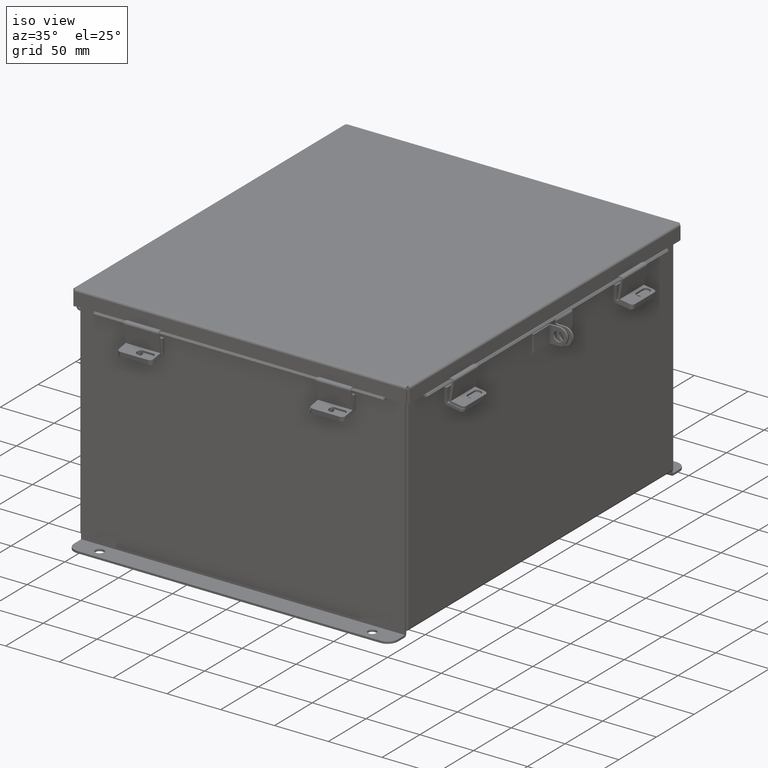
[diagram: clean part render]
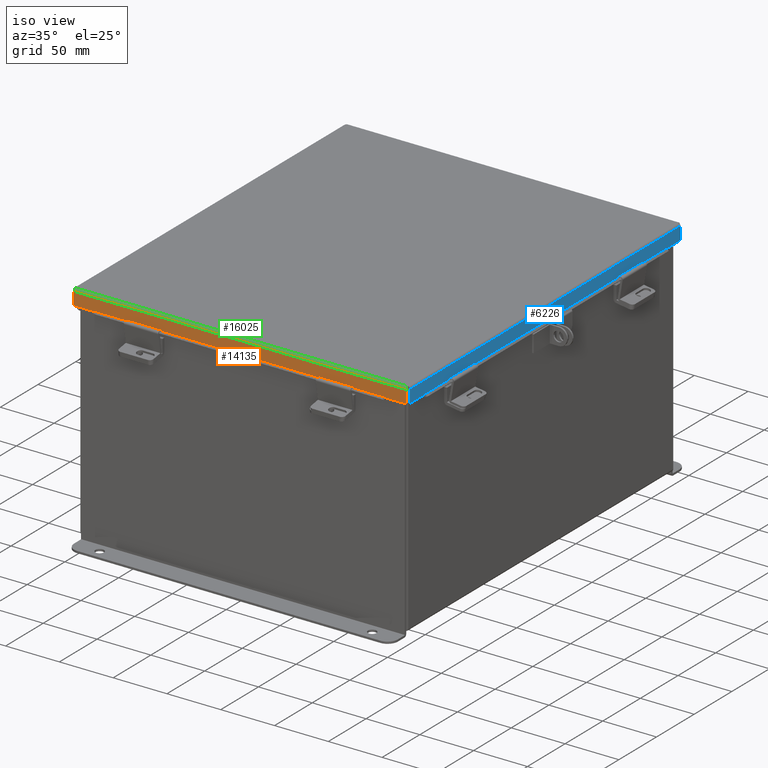
[diagram: same view with three faces highlighted in distinct colors, each labeled with its STEP entity id]
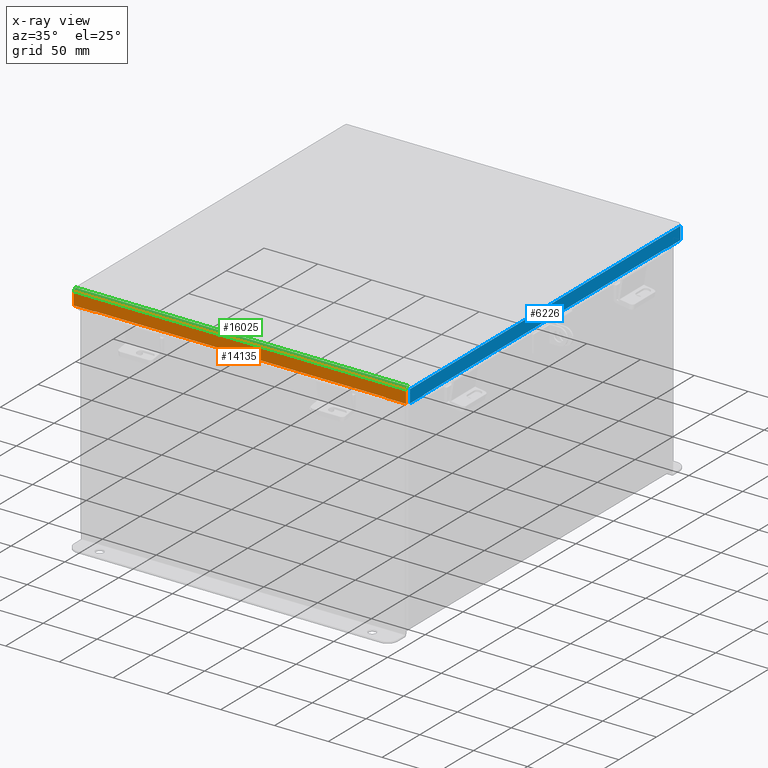
[diagram: x-ray of the same camera — body ghosted, the three highlighted faces saturated]
A machine part, iso view with three faces highlighted in distinct colors.
The next image is the same camera in x-ray (body ghosted, the three faces saturated) — at least one of them is partly hidden behind the body in this view.
Their STEP definitions:

[orange] entity #14135 — the highlighted planar face has unit normal (0, 1, -0).
#89 = CARTESIAN_POINT ( 'NONE',  ( -5.324478932188134700, -7.156250000000003600, 0.4872999999999997900 ) ) ;
#109 = CARTESIAN_POINT ( 'NONE',  ( -6.074478932188134700, -7.156250000000003600, 0.4872999999999997900 ) ) ;
#110 = ORIENTED_EDGE ( 'NONE', *, *, #6830, .F. ) ;
#273 = EDGE_CURVE ( 'NONE', #1318, #590, #18271, .T. ) ;
#311 = LINE ( 'NONE', #15221, #15127 ) ;
#346 = VECTOR ( 'NONE', #4313, 39.37007874015748100 ) ;
#590 = VERTEX_POINT ( 'NONE', #10620 ) ;
#676 = CARTESIAN_POINT ( 'NONE',  ( -5.324478932188133000, -7.156250000000003600, 0.4717115427318793700 ) ) ;
#1004 = CARTESIAN_POINT ( 'NONE',  ( 5.324478932188136500, -7.156250000000003600, 0.4872999999999997900 ) ) ;
#1318 = VERTEX_POINT ( 'NONE', #676 ) ;
#1601 = EDGE_CURVE ( 'NONE', #14327, #4415, #7021, .T. ) ;
#1910 = PLANE ( 'NONE',  #9705 ) ;
#2140 = VECTOR ( 'NONE', #2746, 39.37007874015748100 ) ;
#2746 = DIRECTION ( 'NONE',  ( -1.000000000000000000, 0.0000000000000000000, 5.546899479521349200E-018 ) ) ;
#2969 = VERTEX_POINT ( 'NONE', #1004 ) ;
#3191 = VECTOR ( 'NONE', #16970, 39.37007874015748100 ) ;
#3381 = DIRECTION ( 'NONE',  ( 2.487713722829918300E-032, 1.000000000000000000, 4.484872552701437000E-015 ) ) ;
#3517 = ORIENTED_EDGE ( 'NONE', *, *, #16883, .T. ) ;
#4190 = CARTESIAN_POINT ( 'NONE',  ( 6.074478932188135600, -7.156250000000001800, -3.235568286128124700E-014 ) ) ;
#4204 = LINE ( 'NONE', #12903, #346 ) ;
#4313 = DIRECTION ( 'NONE',  ( -1.000000000000000000, 0.0000000000000000000, 5.546899479521349200E-018 ) ) ;
#4415 = VERTEX_POINT ( 'NONE', #8516 ) ;
#4433 = VERTEX_POINT ( 'NONE', #18532 ) ;
#4774 = LINE ( 'NONE', #18619, #12405 ) ;
#4836 = ORIENTED_EDGE ( 'NONE', *, *, #1601, .T. ) ;
#4953 = VERTEX_POINT ( 'NONE', #109 ) ;
#5083 = LINE ( 'NONE', #9905, #2140 ) ;
#5156 = ORIENTED_EDGE ( 'NONE', *, *, #7479, .T. ) ;
#5699 = DIRECTION ( 'NONE',  ( -1.000000000000000000, 2.487713722829918300E-032, 1.089533968265403200E-046 ) ) ;
#6475 = ORIENTED_EDGE ( 'NONE', *, *, #17955, .F. ) ;
#6580 = ORIENTED_EDGE ( 'NONE', *, *, #9723, .F. ) ;
#6830 = EDGE_CURVE ( 'NONE', #16254, #1318, #11581, .T. ) ;
#7021 = LINE ( 'NONE', #4190, #9926 ) ;
#7479 = EDGE_CURVE ( 'NONE', #16254, #4953, #5083, .T. ) ;
#7791 = VECTOR ( 'NONE', #18203, 39.37007874015748100 ) ;
#8163 = CARTESIAN_POINT ( 'NONE',  ( 6.074478932188137400, -7.156250000000001800, 0.01299999999999978100 ) ) ;
#8516 = CARTESIAN_POINT ( 'NONE',  ( 6.074478932188137400, -7.156250000000003600, 0.4872999999999997300 ) ) ;
#9705 = AXIS2_PLACEMENT_3D ( 'NONE', #11986, #3381, #13410 ) ;
#9723 = EDGE_CURVE ( 'NONE', #590, #2969, #9939, .T. ) ;
#9798 = EDGE_CURVE ( 'NONE', #14327, #4433, #4774, .T. ) ;
#9905 = CARTESIAN_POINT ( 'NONE',  ( 2.703004116370754100E-018, -7.156250000000003600, 0.4872999999999997900 ) ) ;
#9926 = VECTOR ( 'NONE', #12799, 39.37007874015748100 ) ;
#9939 = LINE ( 'NONE', #15521, #3191 ) ;
#10234 = CARTESIAN_POINT ( 'NONE',  ( -5.324478932188134700, -7.156250000000004400, 0.4717115427318793700 ) ) ;
#10620 = CARTESIAN_POINT ( 'NONE',  ( 5.324478932188136500, -7.156250000000003600, 0.4717115427318793700 ) ) ;
#11367 = EDGE_LOOP ( 'NONE', ( #110, #5156, #6475, #14576, #4836, #3517, #6580, #14541 ) ) ;
#11581 = LINE ( 'NONE', #16726, #7791 ) ;
#11899 = FACE_OUTER_BOUND ( 'NONE', #11367, .T. ) ;
#11986 = CARTESIAN_POINT ( 'NONE',  ( -1.780270132900160700E-031, -7.156250000000001800, -3.235568286128124700E-014 ) ) ;
#12405 = VECTOR ( 'NONE', #5699, 39.37007874015748100 ) ;
#12799 = DIRECTION ( 'NONE',  ( 0.0000000000000000000, -4.484872552701437000E-015, 1.000000000000000000 ) ) ;
#12903 = CARTESIAN_POINT ( 'NONE',  ( 2.703004116370754100E-018, -7.156250000000003600, 0.4872999999999997900 ) ) ;
#13410 = DIRECTION ( 'NONE',  ( 0.0000000000000000000, -4.484872552701437000E-015, 1.000000000000000000 ) ) ;
#14135 = ADVANCED_FACE ( 'NONE', ( #11899 ), #1910, .F. ) ;
#14327 = VERTEX_POINT ( 'NONE', #8163 ) ;
#14541 = ORIENTED_EDGE ( 'NONE', *, *, #273, .F. ) ;
#14576 = ORIENTED_EDGE ( 'NONE', *, *, #9798, .F. ) ;
#14877 = VECTOR ( 'NONE', #17563, 39.37007874015748100 ) ;
#15127 = VECTOR ( 'NONE', #18065, 39.37007874015748100 ) ;
#15221 = CARTESIAN_POINT ( 'NONE',  ( -6.074478932188134700, -7.156250000000001800, -3.350199796867980800E-016 ) ) ;
#15521 = CARTESIAN_POINT ( 'NONE',  ( 5.324478932188136500, -7.156250000000004400, 0.4717115427318793700 ) ) ;
#16254 = VERTEX_POINT ( 'NONE', #89 ) ;
#16726 = CARTESIAN_POINT ( 'NONE',  ( -5.324478932188134700, -7.156250000000004400, 0.4872999999999991200 ) ) ;
#16883 = EDGE_CURVE ( 'NONE', #4415, #2969, #4204, .T. ) ;
#16970 = DIRECTION ( 'NONE',  ( 0.0000000000000000000, 7.009925220120839700E-014, 1.000000000000000000 ) ) ;
#17563 = DIRECTION ( 'NONE',  ( 1.000000000000000000, 0.0000000000000000000, 0.0000000000000000000 ) ) ;
#17955 = EDGE_CURVE ( 'NONE', #4433, #4953, #311, .T. ) ;
#18065 = DIRECTION ( 'NONE',  ( -0.0000000000000000000, -4.484872552701437000E-015, 1.000000000000000000 ) ) ;
#18203 = DIRECTION ( 'NONE',  ( 7.009925220120962200E-014, 0.0000000000000000000, -1.000000000000000000 ) ) ;
#18271 = LINE ( 'NONE', #10234, #14877 ) ;
#18532 = CARTESIAN_POINT ( 'NONE',  ( -6.074478932188134700, -7.156250000000001800, 0.01299999999999977400 ) ) ;
#18619 = CARTESIAN_POINT ( 'NONE',  ( -6.156249999999998200, -7.156250000000001800, 0.01299999999999978100 ) ) ;

[blue] entity #6226 — the highlighted planar face has unit normal (-1, 0, -0).
#396 = VERTEX_POINT ( 'NONE', #14492 ) ;
#657 = DIRECTION ( 'NONE',  ( 1.401985044024106600E-013, 0.0000000000000000000, -1.000000000000000000 ) ) ;
#930 = CARTESIAN_POINT ( 'NONE',  ( -6.156250000000002700, -6.324478932188135600, 0.4717115427318778200 ) ) ;
#1134 = EDGE_LOOP ( 'NONE', ( #3457, #8483, #9673, #6004, #11315, #16380, #11362, #8053 ) ) ;
#1832 = DIRECTION ( 'NONE',  ( 1.000000000000000000, 0.0000000000000000000, 4.484872552701437800E-015 ) ) ;
#2356 = EDGE_CURVE ( 'NONE', #16954, #3609, #2926, .T. ) ;
#2926 = LINE ( 'NONE', #15378, #10118 ) ;
#3101 = VERTEX_POINT ( 'NONE', #16995 ) ;
#3457 = ORIENTED_EDGE ( 'NONE', *, *, #12900, .F. ) ;
#3609 = VERTEX_POINT ( 'NONE', #930 ) ;
#4489 = VERTEX_POINT ( 'NONE', #17128 ) ;
#4663 = EDGE_CURVE ( 'NONE', #15686, #396, #13425, .T. ) ;
#4750 = EDGE_CURVE ( 'NONE', #4489, #5337, #5363, .T. ) ;
#4922 = AXIS2_PLACEMENT_3D ( 'NONE', #7561, #1832, #11898 ) ;
#5308 = FACE_OUTER_BOUND ( 'NONE', #1134, .T. ) ;
#5337 = VERTEX_POINT ( 'NONE', #8563 ) ;
#5363 = LINE ( 'NONE', #6236, #8731 ) ;
#6004 = ORIENTED_EDGE ( 'NONE', *, *, #10886, .F. ) ;
#6226 = ADVANCED_FACE ( 'NONE', ( #5308 ), #10453, .F. ) ;
#6236 = CARTESIAN_POINT ( 'NONE',  ( -6.156250000000002700, 0.0000000000000000000, 0.4872999999999997300 ) ) ;
#6762 = VECTOR ( 'NONE', #8002, 39.37007874015748100 ) ;
#7061 = LINE ( 'NONE', #15320, #17584 ) ;
#7561 = CARTESIAN_POINT ( 'NONE',  ( -6.156250000000000000, 0.0000000000000000000, -2.787081030857980700E-014 ) ) ;
#7596 = VECTOR ( 'NONE', #18588, 39.37007874015748100 ) ;
#8002 = DIRECTION ( 'NONE',  ( -3.424136966969389700E-031, 1.000000000000000000, 7.634859021594447800E-017 ) ) ;
#8053 = ORIENTED_EDGE ( 'NONE', *, *, #2356, .F. ) ;
#8483 = ORIENTED_EDGE ( 'NONE', *, *, #4750, .T. ) ;
#8563 = CARTESIAN_POINT ( 'NONE',  ( -6.156250000000002700, 7.074478932188134700, 0.4872999999999997300 ) ) ;
#8628 = EDGE_CURVE ( 'NONE', #3609, #11405, #7061, .T. ) ;
#8702 = LINE ( 'NONE', #17102, #15393 ) ;
#8731 = VECTOR ( 'NONE', #16239, 39.37007874015748100 ) ;
#9292 = CARTESIAN_POINT ( 'NONE',  ( -6.156250000000004400, 6.324478932188134700, 0.4872999999999985100 ) ) ;
#9629 = VECTOR ( 'NONE', #13260, 39.37007874015748100 ) ;
#9673 = ORIENTED_EDGE ( 'NONE', *, *, #15164, .F. ) ;
#10118 = VECTOR ( 'NONE', #16830, 39.37007874015748100 ) ;
#10377 = CARTESIAN_POINT ( 'NONE',  ( -6.156250000000000000, -7.074478932188136500, -2.787081030857980700E-014 ) ) ;
#10453 = PLANE ( 'NONE',  #4922 ) ;
#10562 = LINE ( 'NONE', #16560, #6762 ) ;
#10886 = EDGE_CURVE ( 'NONE', #15686, #3101, #10562, .T. ) ;
#11315 = ORIENTED_EDGE ( 'NONE', *, *, #4663, .T. ) ;
#11362 = ORIENTED_EDGE ( 'NONE', *, *, #8628, .F. ) ;
#11405 = VERTEX_POINT ( 'NONE', #17748 ) ;
#11408 = LINE ( 'NONE', #11438, #7596 ) ;
#11438 = CARTESIAN_POINT ( 'NONE',  ( -6.156250000000000000, 7.074478932188134700, -3.350199796867981300E-016 ) ) ;
#11898 = DIRECTION ( 'NONE',  ( 4.484872552701437800E-015, 0.0000000000000000000, -1.000000000000000000 ) ) ;
#12884 = CARTESIAN_POINT ( 'NONE',  ( -6.156250000000000000, -7.074478932188136500, 0.01299999999999869500 ) ) ;
#12900 = EDGE_CURVE ( 'NONE', #4489, #16954, #14534, .T. ) ;
#13260 = DIRECTION ( 'NONE',  ( -4.484872552701437800E-015, 0.0000000000000000000, 1.000000000000000000 ) ) ;
#13425 = LINE ( 'NONE', #10377, #9629 ) ;
#13874 = EDGE_CURVE ( 'NONE', #396, #11405, #8702, .T. ) ;
#14100 = VECTOR ( 'NONE', #657, 39.37007874015748100 ) ;
#14492 = CARTESIAN_POINT ( 'NONE',  ( -6.156250000000002700, -7.074478932188136500, 0.4872999999999997300 ) ) ;
#14534 = LINE ( 'NONE', #9292, #14100 ) ;
#15164 = EDGE_CURVE ( 'NONE', #3101, #5337, #11408, .T. ) ;
#15320 = CARTESIAN_POINT ( 'NONE',  ( -6.156250000000002700, -6.324478932188135600, 0.4717115427318778200 ) ) ;
#15378 = CARTESIAN_POINT ( 'NONE',  ( -6.156250000000002700, 6.324478932188135600, 0.4717115427318778200 ) ) ;
#15393 = VECTOR ( 'NONE', #18568, 39.37007874015748100 ) ;
#15686 = VERTEX_POINT ( 'NONE', #12884 ) ;
#15799 = CARTESIAN_POINT ( 'NONE',  ( -6.156250000000002700, 6.324478932188134700, 0.4717115427318778200 ) ) ;
#16239 = DIRECTION ( 'NONE',  ( -0.0000000000000000000, 1.000000000000000000, 0.0000000000000000000 ) ) ;
#16380 = ORIENTED_EDGE ( 'NONE', *, *, #13874, .T. ) ;
#16560 = CARTESIAN_POINT ( 'NONE',  ( -6.156250000000000000, 7.156249999999999100, 0.01299999999999978100 ) ) ;
#16762 = DIRECTION ( 'NONE',  ( -7.009925220120348700E-014, 0.0000000000000000000, 1.000000000000000000 ) ) ;
#16830 = DIRECTION ( 'NONE',  ( -0.0000000000000000000, -1.000000000000000000, -0.0000000000000000000 ) ) ;
#16954 = VERTEX_POINT ( 'NONE', #15799 ) ;
#16995 = CARTESIAN_POINT ( 'NONE',  ( -6.156250000000000000, 7.074478932188136500, 0.01299999999999980700 ) ) ;
#17102 = CARTESIAN_POINT ( 'NONE',  ( -6.156250000000002700, 0.0000000000000000000, 0.4872999999999997300 ) ) ;
#17128 = CARTESIAN_POINT ( 'NONE',  ( -6.156250000000002700, 6.324478932188134700, 0.4872999999999997300 ) ) ;
#17584 = VECTOR ( 'NONE', #16762, 39.37007874015748100 ) ;
#17748 = CARTESIAN_POINT ( 'NONE',  ( -6.156250000000002700, -6.324478932188135600, 0.4872999999999997300 ) ) ;
#18568 = DIRECTION ( 'NONE',  ( -0.0000000000000000000, 1.000000000000000000, 0.0000000000000000000 ) ) ;
#18588 = DIRECTION ( 'NONE',  ( -4.484872552701437800E-015, 0.0000000000000000000, 1.000000000000000000 ) ) ;

[green] entity #16025 — the highlighted cylindrical surface (edge-blend (fillet) strip) has radius 2.2276 mm, axis along (-1, 0, -0).
#158 = CARTESIAN_POINT ( 'NONE',  ( 6.074478932188137400, -7.068550000000001000, -0.07469999999999993300 ) ) ;
#936 = DIRECTION ( 'NONE',  ( 1.000000000000000000, -0.0000000000000000000, -0.0000000000000000000 ) ) ;
#1099 = EDGE_CURVE ( 'NONE', #13419, #18263, #2754, .T. ) ;
#1240 = EDGE_CURVE ( 'NONE', #18263, #4433, #14993, .T. ) ;
#2132 = ORIENTED_EDGE ( 'NONE', *, *, #18579, .F. ) ;
#2691 = B_SPLINE_CURVE_WITH_KNOTS ( 'NONE', 3,
 ( #17554, #10409, #3241, #13294, #4720, #14711, #6142, #16150, #7583, #17607 ),
 .UNSPECIFIED., .F., .F.,
 ( 4, 2, 2, 2, 4 ),
 ( 0.0000000000000000000, 0.2500000000000000000, 0.5000000000000000000, 0.7500000000000000000, 1.000000000000000000 ),
 .UNSPECIFIED. ) ;
#2754 = LINE ( 'NONE', #158, #13746 ) ;
#3241 = CARTESIAN_POINT ( 'NONE',  ( 6.073490776823450500, -7.153967403743812300, -0.009955289458309056500 ) ) ;
#4433 = VERTEX_POINT ( 'NONE', #18532 ) ;
#4720 = CARTESIAN_POINT ( 'NONE',  ( 6.072008543776413500, -7.138680782078322000, -0.04089574734180010500 ) ) ;
#4774 = LINE ( 'NONE', #18619, #12405 ) ;
#4840 = CARTESIAN_POINT ( 'NONE',  ( -6.070526310729377400, -7.112717384578527200, -0.06363106625866835100 ) ) ;
#5230 = DIRECTION ( 'NONE',  ( 0.0000000000000000000, -1.000000000000000000, -4.477801015840783100E-015 ) ) ;
#5285 = AXIS2_PLACEMENT_3D ( 'NONE', #10985, #936, #5230 ) ;
#5699 = DIRECTION ( 'NONE',  ( -1.000000000000000000, 2.487713722829918300E-032, 1.089533968265403200E-046 ) ) ;
#6142 = CARTESIAN_POINT ( 'NONE',  ( 6.070526310729379200, -7.112717384578529000, -0.06363106625866837800 ) ) ;
#6274 = CARTESIAN_POINT ( 'NONE',  ( -6.072008543776412600, -7.138680782078324700, -0.04089574734180011200 ) ) ;
#7583 = CARTESIAN_POINT ( 'NONE',  ( 6.069044077682344900, -7.080029903154994900, -0.07469999999999994700 ) ) ;
#7717 = CARTESIAN_POINT ( 'NONE',  ( -6.073490776823446100, -7.153967403743814100, -0.009955289458309054700 ) ) ;
#8163 = CARTESIAN_POINT ( 'NONE',  ( 6.074478932188137400, -7.156250000000001800, 0.01299999999999978100 ) ) ;
#9113 = CARTESIAN_POINT ( 'NONE',  ( -6.069044077682344000, -7.080029903154994900, -0.07469999999999994700 ) ) ;
#9179 = CARTESIAN_POINT ( 'NONE',  ( -6.074478932188134700, -7.156250000000001800, 0.01299999999999977400 ) ) ;
#9798 = EDGE_CURVE ( 'NONE', #14327, #4433, #4774, .T. ) ;
#10409 = CARTESIAN_POINT ( 'NONE',  ( 6.073984854505791700, -7.156250000000002700, 0.001520096845007091700 ) ) ;
#10541 = CARTESIAN_POINT ( 'NONE',  ( -6.069538155364690500, -7.091505289458312200, -0.07241740374381121200 ) ) ;
#10985 = CARTESIAN_POINT ( 'NONE',  ( 6.074478932188137400, -7.068550000000001000, 0.01300000000000016400 ) ) ;
#11179 = CARTESIAN_POINT ( 'NONE',  ( -6.068550000000000100, -7.068550000000001000, -0.07470000000000107100 ) ) ;
#11873 = CARTESIAN_POINT ( 'NONE',  ( 6.068550000000000100, -7.068550000000001000, -0.07469999999999993300 ) ) ;
#12405 = VECTOR ( 'NONE', #5699, 39.37007874015748100 ) ;
#12988 = CYLINDRICAL_SURFACE ( 'NONE', #5285, 0.08770000000000026400 ) ;
#13030 = ORIENTED_EDGE ( 'NONE', *, *, #1099, .F. ) ;
#13294 = CARTESIAN_POINT ( 'NONE',  ( 6.072502621458756500, -7.145181066258667900, -0.03116738457852799900 ) ) ;
#13411 = CARTESIAN_POINT ( 'NONE',  ( -6.068550000000000100, -7.068550000000001000, -0.07470000000000107100 ) ) ;
#13419 = VERTEX_POINT ( 'NONE', #11873 ) ;
#13427 = FACE_OUTER_BOUND ( 'NONE', #14678, .T. ) ;
#13746 = VECTOR ( 'NONE', #17350, 39.37007874015748100 ) ;
#14327 = VERTEX_POINT ( 'NONE', #8163 ) ;
#14678 = EDGE_LOOP ( 'NONE', ( #13030, #2132, #14988, #16752 ) ) ;
#14711 = CARTESIAN_POINT ( 'NONE',  ( 6.071020388411725800, -7.122445747341799900, -0.05713078207832041800 ) ) ;
#14846 = CARTESIAN_POINT ( 'NONE',  ( -6.071020388411723100, -7.122445747341800800, -0.05713078207832041800 ) ) ;
#14988 = ORIENTED_EDGE ( 'NONE', *, *, #9798, .T. ) ;
#14993 = B_SPLINE_CURVE_WITH_KNOTS ( 'NONE', 3,
 ( #13411, #9113, #10541, #4840, #14846, #6274, #16276, #7717, #17747, #9179 ),
 .UNSPECIFIED., .F., .F.,
 ( 4, 2, 2, 2, 4 ),
 ( 0.0000000000000000000, 0.2500000000000000000, 0.5000000000000000000, 0.7500000000000000000, 1.000000000000000000 ),
 .UNSPECIFIED. ) ;
#16025 = ADVANCED_FACE ( 'NONE', ( #13427 ), #12988, .T. ) ;
#16150 = CARTESIAN_POINT ( 'NONE',  ( 6.069538155364689700, -7.091505289458312200, -0.07241740374381121200 ) ) ;
#16276 = CARTESIAN_POINT ( 'NONE',  ( -6.072502621458756500, -7.145181066258669700, -0.03116738457852800300 ) ) ;
#16752 = ORIENTED_EDGE ( 'NONE', *, *, #1240, .F. ) ;
#17350 = DIRECTION ( 'NONE',  ( -1.000000000000000000, 0.0000000000000000000, 0.0000000000000000000 ) ) ;
#17554 = CARTESIAN_POINT ( 'NONE',  ( 6.074478932188137400, -7.156250000000001800, 0.01299999999999978100 ) ) ;
#17607 = CARTESIAN_POINT ( 'NONE',  ( 6.068550000000000100, -7.068550000000001000, -0.07469999999999993300 ) ) ;
#17747 = CARTESIAN_POINT ( 'NONE',  ( -6.073984854505790800, -7.156250000000001800, 0.001520096845007091700 ) ) ;
#18263 = VERTEX_POINT ( 'NONE', #11179 ) ;
#18532 = CARTESIAN_POINT ( 'NONE',  ( -6.074478932188134700, -7.156250000000001800, 0.01299999999999977400 ) ) ;
#18579 = EDGE_CURVE ( 'NONE', #14327, #13419, #2691, .T. ) ;
#18619 = CARTESIAN_POINT ( 'NONE',  ( -6.156249999999998200, -7.156250000000001800, 0.01299999999999978100 ) ) ;